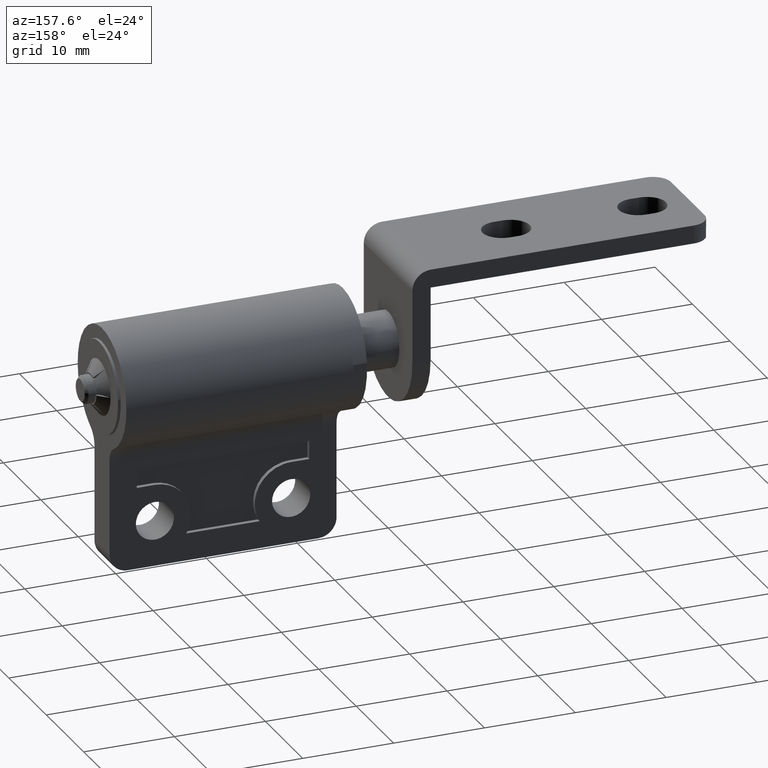
[diagram: clean part render]
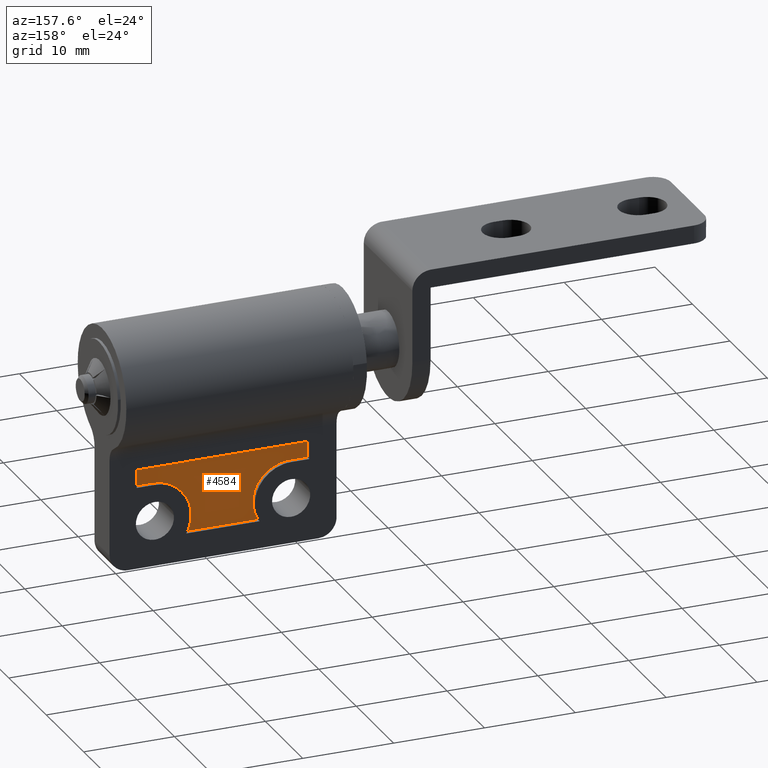
[diagram: same view with one face highlighted and labeled with its STEP entity id]
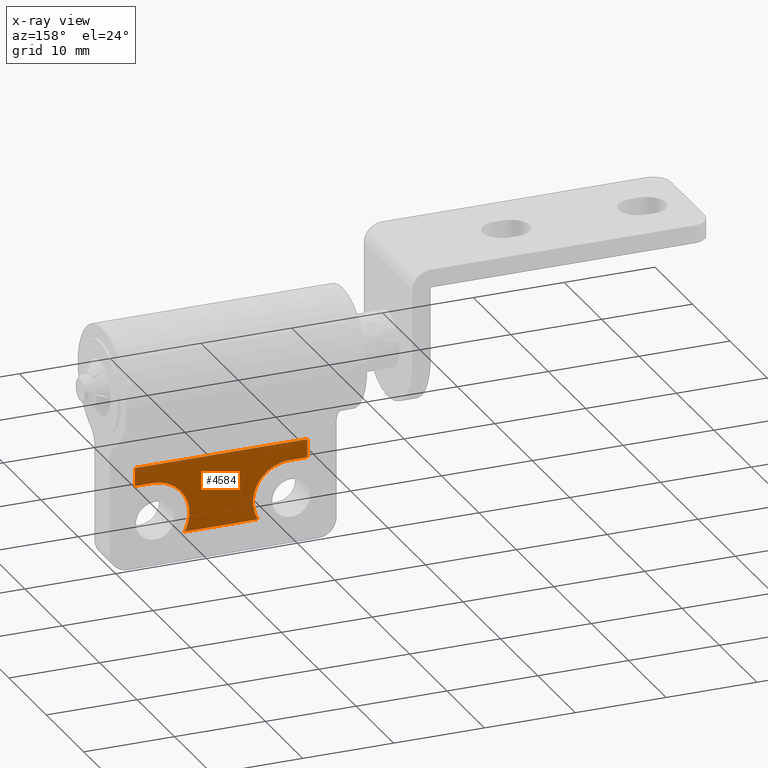
[diagram: x-ray of the same camera — body ghosted, the highlighted face saturated]
A machine part, auxiliary view. The second image highlights one B-rep face of the part: STEP entity #4584.
The next image is the same camera in x-ray: the body ghosted, the highlighted face saturated — about 0% of this face is hidden behind the body in this view.
In plain terms, the highlighted face is a freeform B-spline surface patch.
Its self-contained STEP definition (entity closure, byte-faithful):
#4501=CARTESIAN_POINT('',(8.550950036825686,1.500000000000000,-17.399599984494451));
#4502=CARTESIAN_POINT('',(29.449050472794031,1.500000000000000,-17.399599984494451));
#4503=CARTESIAN_POINT('',(8.550950036825686,1.500000000000000,-8.600399800928830));
#4504=CARTESIAN_POINT('',(29.449050472794031,1.500000000000000,-8.600399800928830));
#4505=B_SPLINE_SURFACE_WITH_KNOTS('',1,1,((#4501,#4503),(#4502,#4504)),.UNSPECIFIED.,.F.,.F.,.U.,(2,2),(2,2),(0.0,20.898100435968342),(0.0,8.799200183565620),.UNSPECIFIED.);
#4506=CARTESIAN_POINT('',(14.964100999999999,1.499999999999946,-17.0));
#4507=VERTEX_POINT('',#4506);
#4508=CARTESIAN_POINT('',(11.500000000000000,1.499999999999946,-11.0));
#4509=VERTEX_POINT('',#4508);
#4510=CARTESIAN_POINT('',(14.964100999999999,1.499999999999946,-17.0));
#4511=CARTESIAN_POINT('',(16.118802204778483,1.499999999999946,-15.000000266362507));
#4512=CARTESIAN_POINT('',(14.964101692029979,1.499999999999946,-13.000000133181249));
#4513=CARTESIAN_POINT('',(13.809401179281481,1.499999999999946,-11.0));
#4514=CARTESIAN_POINT('',(11.500000000000000,1.499999999999946,-11.0));
#4522=(BOUNDED_CURVE()B_SPLINE_CURVE(2,(#4510,#4511,#4512,#4513,#4514),.UNSPECIFIED.,.F.,.U.)B_SPLINE_CURVE_WITH_KNOTS((3,2,3),(0.0,0.500000000000000,1.0),.UNSPECIFIED.)CURVE()GEOMETRIC_REPRESENTATION_ITEM()RATIONAL_B_SPLINE_CURVE((1.0,0.866025394172910,1.0,0.866025394172910,1.0))REPRESENTATION_ITEM(''));
#4523=EDGE_CURVE('',#4507,#4509,#4522,.T.);
#4524=ORIENTED_EDGE('',*,*,#4523,.T.);
#4525=CARTESIAN_POINT('',(9.500000000000000,1.499999999999946,-11.0));
#4526=VERTEX_POINT('',#4525);
#4527=CARTESIAN_POINT('',(11.500000000000000,1.499999999999946,-11.0));
#4528=CARTESIAN_POINT('',(9.500000000000000,1.499999999999946,-11.0));
#4529=QUASI_UNIFORM_CURVE('',1,(#4527,#4528),.UNSPECIFIED.,.F.,.U.);
#4530=EDGE_CURVE('',#4509,#4526,#4529,.T.);
#4531=ORIENTED_EDGE('',*,*,#4530,.T.);
#4532=CARTESIAN_POINT('',(9.500000000000000,1.499999999999946,-9.0));
#4533=VERTEX_POINT('',#4532);
#4534=CARTESIAN_POINT('',(9.500000000000000,1.499999999999946,-11.0));
#4535=CARTESIAN_POINT('',(9.500000000000000,1.499999999999946,-9.0));
#4536=QUASI_UNIFORM_CURVE('',1,(#4534,#4535),.UNSPECIFIED.,.F.,.U.);
#4537=EDGE_CURVE('',#4526,#4533,#4536,.T.);
#4538=ORIENTED_EDGE('',*,*,#4537,.T.);
#4539=CARTESIAN_POINT('',(28.500000000000000,1.499999999999946,-9.0));
#4540=VERTEX_POINT('',#4539);
#4541=CARTESIAN_POINT('',(9.500000000000000,1.499999999999946,-9.0));
#4542=CARTESIAN_POINT('',(28.500000000000000,1.499999999999946,-9.0));
#4543=QUASI_UNIFORM_CURVE('',1,(#4541,#4542),.UNSPECIFIED.,.F.,.U.);
#4544=EDGE_CURVE('',#4533,#4540,#4543,.T.);
#4545=ORIENTED_EDGE('',*,*,#4544,.T.);
#4546=CARTESIAN_POINT('',(28.500000000000000,1.499999999999946,-11.0));
#4547=VERTEX_POINT('',#4546);
#4548=CARTESIAN_POINT('',(28.500000000000000,1.499999999999946,-9.0));
#4549=CARTESIAN_POINT('',(28.500000000000000,1.499999999999946,-11.0));
#4550=QUASI_UNIFORM_CURVE('',1,(#4548,#4549),.UNSPECIFIED.,.F.,.U.);
#4551=EDGE_CURVE('',#4540,#4547,#4550,.T.);
#4552=ORIENTED_EDGE('',*,*,#4551,.T.);
#4553=CARTESIAN_POINT('',(26.500000000000000,1.499999999999946,-11.0));
#4554=VERTEX_POINT('',#4553);
#4555=CARTESIAN_POINT('',(28.500000000000000,1.499999999999946,-11.0));
#4556=CARTESIAN_POINT('',(26.500000000000000,1.499999999999946,-11.0));
#4557=QUASI_UNIFORM_CURVE('',1,(#4555,#4556),.UNSPECIFIED.,.F.,.U.);
#4558=EDGE_CURVE('',#4547,#4554,#4557,.T.);
#4559=ORIENTED_EDGE('',*,*,#4558,.T.);
#4560=CARTESIAN_POINT('',(23.035898384862151,1.499999999999946,-17.0));
#4561=VERTEX_POINT('',#4560);
#4562=CARTESIAN_POINT('',(26.500000000000000,1.499999999999946,-11.0));
#4563=CARTESIAN_POINT('',(24.190598923241510,1.499999999999946,-11.0));
#4564=CARTESIAN_POINT('',(23.035898384862261,1.499999999999946,-12.999999999999980));
#4565=CARTESIAN_POINT('',(21.881197846482998,1.499999999999946,-14.999999999999964));
#4566=CARTESIAN_POINT('',(23.035898384862151,1.499999999999946,-17.0));
#4574=(BOUNDED_CURVE()B_SPLINE_CURVE(2,(#4562,#4563,#4564,#4565,#4566),.UNSPECIFIED.,.F.,.U.)B_SPLINE_CURVE_WITH_KNOTS((3,2,3),(0.0,0.500000000000000,1.0),.UNSPECIFIED.)CURVE()GEOMETRIC_REPRESENTATION_ITEM()RATIONAL_B_SPLINE_CURVE((1.0,0.866025403784440,1.0,0.866025403784440,1.0))REPRESENTATION_ITEM(''));
#4575=EDGE_CURVE('',#4554,#4561,#4574,.T.);
#4576=ORIENTED_EDGE('',*,*,#4575,.T.);
#4577=CARTESIAN_POINT('',(23.035898384862151,1.499999999999946,-17.0));
#4578=CARTESIAN_POINT('',(14.964100999999999,1.499999999999946,-17.0));
#4579=QUASI_UNIFORM_CURVE('',1,(#4577,#4578),.UNSPECIFIED.,.F.,.U.);
#4580=EDGE_CURVE('',#4561,#4507,#4579,.T.);
#4581=ORIENTED_EDGE('',*,*,#4580,.T.);
#4582=EDGE_LOOP('',(#4524,#4531,#4538,#4545,#4552,#4559,#4576,#4581));
#4583=FACE_OUTER_BOUND('',#4582,.T.);
#4584=ADVANCED_FACE('',(#4583),#4505,.F.);